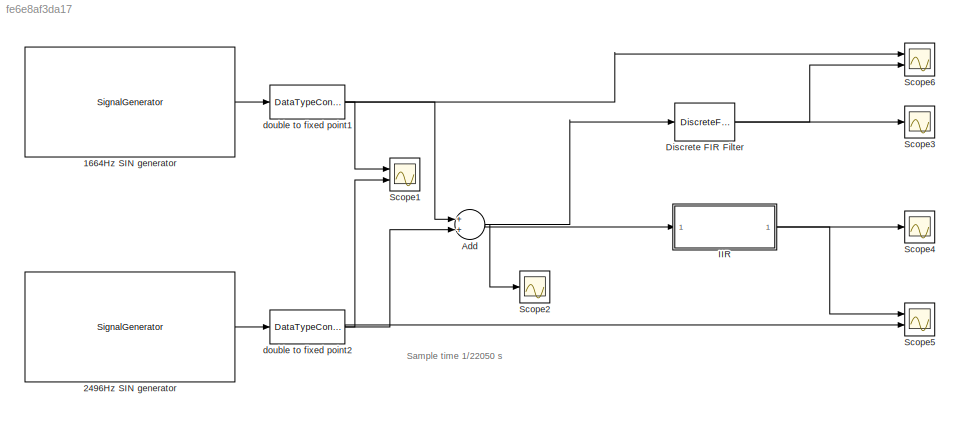
MODEL slx_fe6e8af3da17
KIND model
CONFIG AbsTol = auto
CONFIG EnableMultiTasking = off
CONFIG FixedStep = auto
CONFIG MaxStep = auto
CONFIG MinStep = auto
CONFIG RelTol = 1e-3
CONFIG SampleTimeConstraint = Unconstrained
CONFIG Solver = VariableStepAuto
CONFIG SolverName = VariableStepAuto
CONFIG StartTime = 0.0
CONFIG StopTime = 10.0
BLOCK [SignalGenerator] 1664Hz SIN generator
  Frequency = 1664
  Ports = [0, 1]
BLOCK [SignalGenerator] 2496Hz SIN generator
  Frequency = 2496
  Ports = [0, 1]
BLOCK [Sum] Add
  InputSameDT = off
  OutDataTypeStr = Inherit: Inherit via internal rule
  Ports = [2, 1]
  SaturateOnIntegerOverflow = off
BLOCK [DiscreteFir] Discrete FIR Filter 
  AccumDataTypeStr = fixdt(1,16,14)
  CoefDataTypeStr = fixdt(1,16,14)
  Coefficients = [-0.0073   -0.0071   -0.0059   -0.0024    0.0040    0.0133    0.0231    0.0301    0.0302    0.0207    0.0014   -0.0242   -0.0498 -0.0677   -0.0713   -0.0571   -0.0269    0.0129    0.0525    0.0814    0.0921    0.0814    0.0525    0.0129   -0.0269   -0.0571 -0.0713   -0.0677   -0.0498   -0.0242    0.0014    0.0207    0.0302    0.0301    0.0231    0.0133    0.0040   -0.0024   -0.0059 -0.0071   -0.00...<+3ch>
  Commented = on
  InputPortMap = u0
  OutDataTypeStr = fixdt(1,16,14)
  OutputPortMap = o0
  Ports = [1, 1]
  ProductDataTypeStr = fixdt(1,16,14)
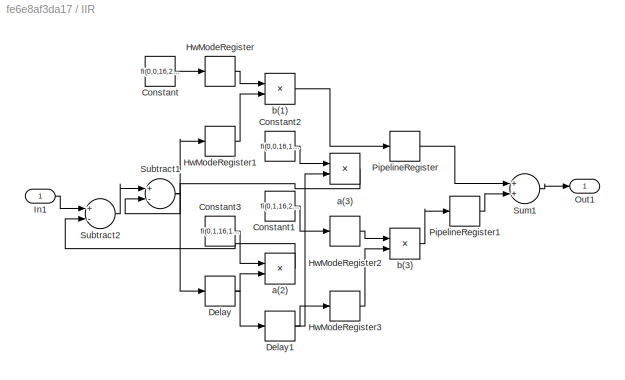
BLOCK [SubSystem] IIR
  Ports = [1, 1]
  RequestExecContextInheritance = off
  Variant = off
BLOCK [Constant] IIR/Constant
  OutDataTypeStr = fixdt(0, 16, 21)
  SampleTime = -1
  Value = fi(0,0,16,21,'hex','d9e8')
BLOCK [Constant] IIR/Constant1
  OutDataTypeStr = fixdt(1, 16, 20)
  SampleTime = -1
  Value = fi(0,1,16,20,'hex','930c')
BLOCK [Constant] IIR/Constant2
  OutDataTypeStr = fixdt(0, 16, 16)
  SampleTime = -1
  Value = fi(0,0,16,16,'hex','f268')
BLOCK [Constant] IIR/Constant3
  OutDataTypeStr = fixdt(1, 16, 14)
  SampleTime = -1
  Value = fi(0,1,16,14,'hex','a19b')
BLOCK [Delay] IIR/Delay
  DelayLength = hex2num('3ff0000000000000')
  InitialCondition = 0
  InputPortMap = u0
  InputProcessing = Inherited
  Ports = [1, 1]
  SampleTime = 4.53514739229025e-05
BLOCK [Delay] IIR/Delay1
  DelayLength = hex2num('3ff0000000000000')
  InitialCondition = 0
  InputPortMap = u0
  InputProcessing = Inherited
  Ports = [1, 1]
  SampleTime = 4.53514739229025e-05
BLOCK [Delay] IIR/HwModeRegister
  DelayLength = hex2num('3ff0000000000000')
  InitialCondition = 0
  InputPortMap = u0
  InputProcessing = Inherited
  Ports = [1, 1]
BLOCK [Delay] IIR/HwModeRegister1
  DelayLength = hex2num('3ff0000000000000')
  InitialCondition = 0
  InputPortMap = u0
  InputProcessing = Inherited
  Ports = [1, 1]
  SampleTime = 4.53514739229025e-05
BLOCK [Delay] IIR/HwModeRegister2
  DelayLength = hex2num('3ff0000000000000')
  InitialCondition = 0
  InputPortMap = u0
  InputProcessing = Inherited
  Ports = [1, 1]
BLOCK [Delay] IIR/HwModeRegister3
  DelayLength = hex2num('3ff0000000000000')
  InitialCondition = 0
  InputPortMap = u0
  InputProcessing = Inherited
  Ports = [1, 1]
  SampleTime = 4.53514739229025e-05
BLOCK [Inport] IIR/In1
  IconDisplay = Port number
  OutDataTypeStr = fixdt(1, 16, 14)
  SampleTime = 0
BLOCK [Outport] IIR/Out1
  IconDisplay = Port number
BLOCK [Delay] IIR/PipelineRegister
  DelayLength = hex2num('3ff0000000000000')
  InitialCondition = 0
  InputPortMap = u0
  InputProcessing = Inherited
  Ports = [1, 1]
BLOCK [Delay] IIR/PipelineRegister1
  DelayLength = hex2num('3ff0000000000000')
  InitialCondition = 0
  InputPortMap = u0
  InputProcessing = Inherited
  Ports = [1, 1]
  SampleTime = 4.53514739229025e-05
BLOCK [Sum] IIR/Subtract1
  AccumDataTypeStr = fixdt(1, 32, 10)
  InputSameDT = off
  Inputs = +-
  OutDataTypeStr = fixdt(1, 16, 9)
  Ports = [2, 1]
  SampleTime = 4.53514739229025e-05
  SaturateOnIntegerOverflow = off
BLOCK [Sum] IIR/Subtract2
  AccumDataTypeStr = fixdt(1, 32, 14)
  InputSameDT = off
  Inputs = +-
  OutDataTypeStr = fixdt(1, 16, 9)
  Ports = [2, 1]
  SampleTime = 4.53514739229025e-05
  SaturateOnIntegerOverflow = off
BLOCK [Sum] IIR/Sum1
  AccumDataTypeStr = fixdt(1, 32, 15)
  InputSameDT = off
  OutDataTypeStr = fixdt(1, 16, 14)
  Ports = [2, 1]
  SampleTime = 4.53514739229025e-05
  SaturateOnIntegerOverflow = off
BLOCK [Product] IIR/a(2)
  InputSameDT = off
  Inputs = **
  OutDataTypeStr = fixdt(1, 16, 9)
  Ports = [2, 1]
  RndMeth = Floor
  SampleTime = 4.53514739229025e-05
  SaturateOnIntegerOverflow = off
BLOCK [Product] IIR/a(3)
  InputSameDT = off
  Inputs = **
  OutDataTypeStr = fixdt(1, 16, 10)
  Ports = [2, 1]
  RndMeth = Floor
  SampleTime = 4.53514739229025e-05
  SaturateOnIntegerOverflow = off
BLOCK [Product] IIR/b(1)
  InputSameDT = off
  Inputs = **
  OutDataTypeStr = fixdt(1, 16, 15)
  Ports = [2, 1]
  RndMeth = Floor
  SaturateOnIntegerOverflow = off
BLOCK [Product] IIR/b(3)
  InputSameDT = off
  Inputs = **
  OutDataTypeStr = fixdt(1, 16, 15)
  Ports = [2, 1]
  RndMeth = Floor
  SampleTime = 4.53514739229025e-05
  SaturateOnIntegerOverflow = off
BLOCK [Scope] Scope1
  NumInputPorts = 2
  Ports = [2]
  ScopeSpecificationString = Simulink.scopes.TimeScopeBlockCfg('CurrentConfiguration', extmgr.ConfigurationSet(extmgr.Configuration('Core','General UI',true),extmgr.Configuration('Core','Source UI',true),extmgr.Configuration('Sources','WiredSimulink',true,'DataLoggingVariableName','ScopeData1','SampleTime','1/22050'),extmgr.Configuration('Visuals','Time Domain',true,'SerializedDisplays',{struct('MinYLimReal','-1.27057','MaxYL...<+1500ch>
BLOCK [Scope] Scope2
  NumInputPorts = 1
  Ports = [1]
  ScopeSpecificationString = Simulink.scopes.TimeScopeBlockCfg('CurrentConfiguration', extmgr.ConfigurationSet(extmgr.Configuration('Core','General UI',true),extmgr.Configuration('Core','Source UI',true),extmgr.Configuration('Sources','WiredSimulink',true,'DataLoggingVariableName','ScopeData2'),extmgr.Configuration('Visuals','Time Domain',true,'SerializedDisplays',{struct('MinYLimReal','-2.38203','MaxYLimReal','2.33022','YLab...<+1410ch>
BLOCK [Scope] Scope3
  NumInputPorts = 1
  Ports = [1]
  ScopeSpecificationString = Simulink.scopes.TimeScopeBlockCfg('CurrentConfiguration', extmgr.ConfigurationSet(extmgr.Configuration('Core','General UI',true),extmgr.Configuration('Core','Source UI',true),extmgr.Configuration('Sources','WiredSimulink',true),extmgr.Configuration('Visuals','Time Domain',true,'SerializedDisplays',{struct('MinYLimReal','-1.35033','MaxYLimReal','1.34727','YLabelReal','','MinYLimMag','0.00000','MaxY...<+1394ch>
BLOCK [Scope] Scope4
  NumInputPorts = 1
  Ports = [1]
  ScopeSpecificationString = Simulink.scopes.TimeScopeBlockCfg('CurrentConfiguration', extmgr.ConfigurationSet(extmgr.Configuration('Core','General UI',true),extmgr.Configuration('Core','Source UI',true),extmgr.Configuration('Sources','WiredSimulink',true,'DataLoggingVariableName','ScopeData3'),extmgr.Configuration('Visuals','Time Domain',true,'SerializedDisplays',{struct('MinYLimReal','-1.3507','MaxYLimReal','1.31463','YLabe...<+1430ch>
BLOCK [Scope] Scope5
  NumInputPorts = 2
  Ports = [2]
  ScopeSpecificationString = Simulink.scopes.TimeScopeBlockCfg('CurrentConfiguration', extmgr.ConfigurationSet(extmgr.Configuration('Core','General UI',true),extmgr.Configuration('Core','Source UI',true),extmgr.Configuration('Sources','WiredSimulink',true,'DataLoggingVariableName','ScopeData4','SampleTime','1/22050'),extmgr.Configuration('Visuals','Time Domain',true,'SerializedDisplays',{struct('MinYLimReal','-1.24997','MaxYL...<+1483ch>
BLOCK [Scope] Scope6
  NumInputPorts = 2
  Ports = [2]
  ScopeSpecificationString = Simulink.scopes.TimeScopeBlockCfg('CurrentConfiguration', extmgr.ConfigurationSet(extmgr.Configuration('Core','General UI',true),extmgr.Configuration('Core','Source UI',true),extmgr.Configuration('Sources','WiredSimulink',true,'DataLoggingVariableName','ScopeData5','SampleTime','1/22050'),extmgr.Configuration('Visuals','Time Domain',true,'SerializedDisplays',{struct('MinYLimReal','-1.24997','MaxYL...<+1500ch>
BLOCK [DataTypeConversion] double to fixed point1
  OutDataTypeStr = fixdt(1,16,14)
  RndMeth = Floor
  SaturateOnIntegerOverflow = off
BLOCK [DataTypeConversion] double to fixed point2
  OutDataTypeStr = fixdt(1,16,14)
  RndMeth = Floor
  SaturateOnIntegerOverflow = off
ANNOTATION (root): Sample time 1/22050 s
LINE 1664Hz SIN generator:1 -> double to fixed point1:1
LINE 2496Hz SIN generator:1 -> double to fixed point2:1
NET Add:1 -> Discrete FIR Filter :1, IIR:1, Scope2:1
NET Discrete FIR Filter :1 -> Scope3:1, Scope6:2
LINE IIR/Constant1:1 -> IIR/HwModeRegister2:1
LINE IIR/Constant2:1 -> IIR/a(3):1
LINE IIR/Constant3:1 -> IIR/a(2):1
LINE IIR/Constant:1 -> IIR/HwModeRegister:1
NET IIR/Delay1:1 -> IIR/HwModeRegister3:1, IIR/a(3):2
NET IIR/Delay:1 -> IIR/Delay1:1, IIR/a(2):2
LINE IIR/HwModeRegister1:1 -> IIR/b(1):2
LINE IIR/HwModeRegister2:1 -> IIR/b(3):1
LINE IIR/HwModeRegister3:1 -> IIR/b(3):2
LINE IIR/HwModeRegister:1 -> IIR/b(1):1
LINE IIR/In1:1 -> IIR/Subtract2:1
LINE IIR/PipelineRegister1:1 -> IIR/Sum1:2
LINE IIR/PipelineRegister:1 -> IIR/Sum1:1
NET IIR/Subtract1:1 -> IIR/Delay:1, IIR/HwModeRegister1:1
LINE IIR/Subtract2:1 -> IIR/Subtract1:1
LINE IIR/Sum1:1 -> IIR/Out1:1
LINE IIR/a(2):1 -> IIR/Subtract2:2
LINE IIR/a(3):1 -> IIR/Subtract1:2
LINE IIR/b(1):1 -> IIR/PipelineRegister:1
LINE IIR/b(3):1 -> IIR/PipelineRegister1:1
NET IIR:1 -> Scope4:1, Scope5:1
NET double to fixed point1:1 -> Add:1, Scope1:1, Scope6:1
NET double to fixed point2:1 -> Add:2, Scope1:2, Scope5:2
note: NET lines group one-source signal fan-out (src -> all destinations, sorted); 1:1 wires keep LINE
